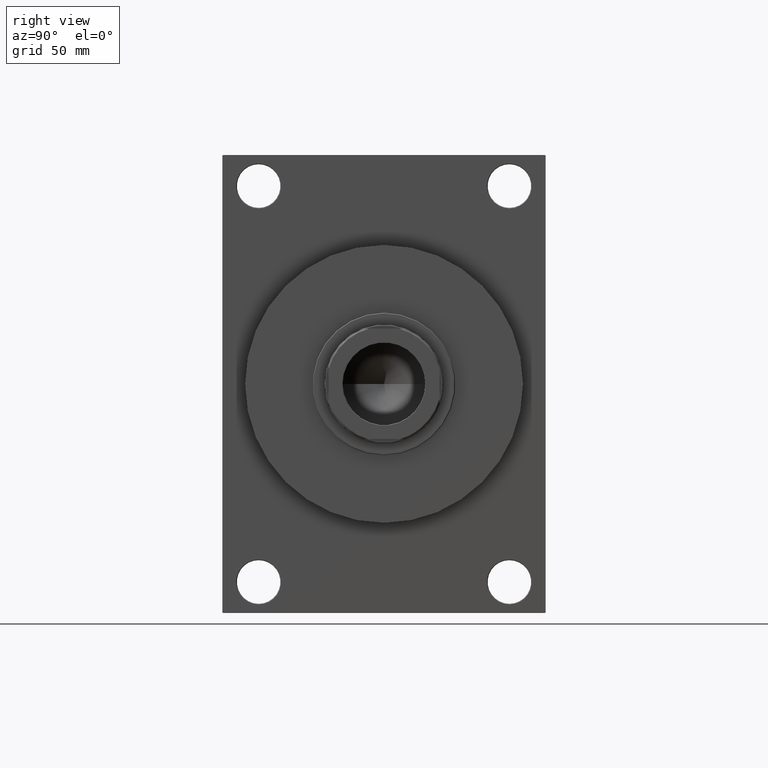
[diagram: clean part render]
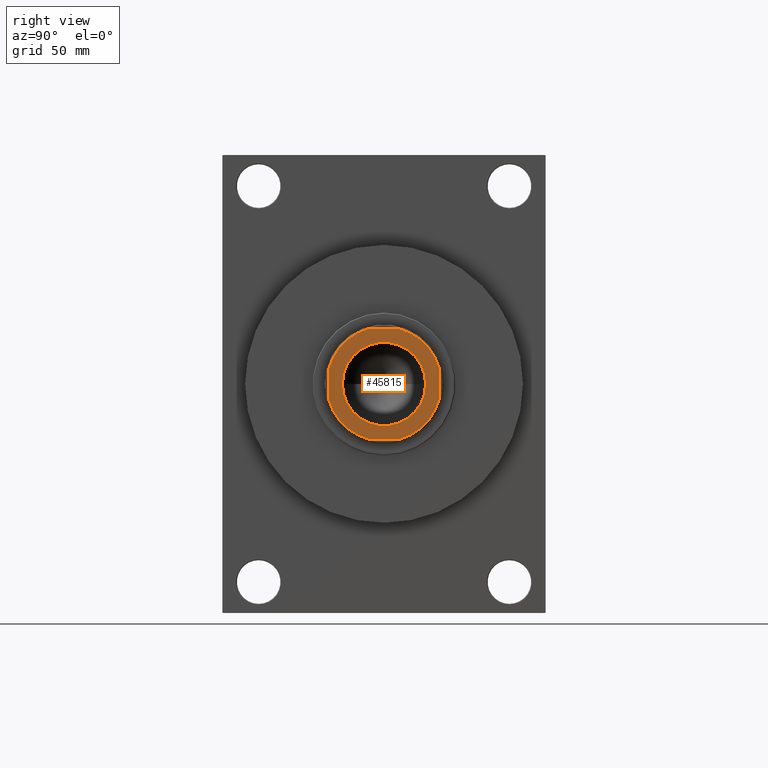
[diagram: same view with one face highlighted and labeled with its STEP entity id]
A machine part, right view. The second image highlights one B-rep face of the part: STEP entity #45815.
In plain terms, the highlighted planar face has unit normal (1, 0, 0).
Its self-contained STEP definition (entity closure, byte-faithful):
#1191 = CARTESIAN_POINT ( 'NONE',  ( 0.000000000000000000, 0.000000000000000000, 245.0000000000000000 ) ) ;
#1218 = VERTEX_POINT ( 'NONE', #26447 ) ;
#1507 = LINE ( 'NONE', #34026, #29238 ) ;
#1559 = CIRCLE ( 'NONE', #21541, 43.50000000000004263 ) ;
#2577 = CARTESIAN_POINT ( 'NONE',  ( -42.00000000000001421, 41.99999999999997868, 245.0000000000000000 ) ) ;
#2804 = ORIENTED_EDGE ( 'NONE', *, *, #30535, .T. ) ;
#3042 = DIRECTION ( 'NONE',  ( 1.652117596168388002E-16, -1.000000000000000000, 0.000000000000000000 ) ) ;
#4502 = CARTESIAN_POINT ( 'NONE',  ( 0.000000000000000000, 0.000000000000000000, 245.0000000000000000 ) ) ;
#6237 = VERTEX_POINT ( 'NONE', #41817 ) ;
#6758 = VECTOR ( 'NONE', #28336, 1000.000000000000000 ) ;
#7099 = CIRCLE ( 'NONE', #13996, 31.55000000000002203 ) ;
#7189 = DIRECTION ( 'NONE',  ( 0.000000000000000000, -0.000000000000000000, -1.000000000000000000 ) ) ;
#7208 = CARTESIAN_POINT ( 'NONE',  ( -42.00000000000000711, 11.32475165290618158, 245.0000000000000000 ) ) ;
#7581 = DIRECTION ( 'NONE',  ( 1.000000000000000000, 0.000000000000000000, 0.000000000000000000 ) ) ;
#8363 = ORIENTED_EDGE ( 'NONE', *, *, #44033, .T. ) ;
#8394 = EDGE_CURVE ( 'NONE', #39062, #46157, #1559, .T. ) ;
#10377 = VERTEX_POINT ( 'NONE', #44978 ) ;
#10952 = CIRCLE ( 'NONE', #20179, 43.50000000000002132 ) ;
#11522 = CIRCLE ( 'NONE', #18468, 43.50000000000011369 ) ;
#12058 = CARTESIAN_POINT ( 'NONE',  ( 41.99999999999998579, 11.32475165290661856, 245.0000000000000000 ) ) ;
#12250 = EDGE_CURVE ( 'NONE', #46157, #10377, #36476, .T. ) ;
#12594 = CARTESIAN_POINT ( 'NONE',  ( -11.32475165290629171, 41.99999999999997868, 245.0000000000000000 ) ) ;
#12913 = EDGE_CURVE ( 'NONE', #13369, #15621, #10952, .T. ) ;
#13240 = AXIS2_PLACEMENT_3D ( 'NONE', #34589, #30987, #21331 ) ;
#13369 = VERTEX_POINT ( 'NONE', #12594 ) ;
#13863 = CARTESIAN_POINT ( 'NONE',  ( 41.99999999999999289, -11.32475165290659724, 245.0000000000000000 ) ) ;
#13996 = AXIS2_PLACEMENT_3D ( 'NONE', #4502, #7189, #33179 ) ;
#14031 = CARTESIAN_POINT ( 'NONE',  ( -31.55000000000002203, 3.863760651309902128E-15, 245.0000000000000000 ) ) ;
#14083 = ORIENTED_EDGE ( 'NONE', *, *, #32626, .T. ) ;
#14547 = DIRECTION ( 'NONE',  ( 1.000000000000000000, 0.000000000000000000, 0.000000000000000000 ) ) ;
#14932 = EDGE_CURVE ( 'NONE', #43257, #1218, #25641, .T. ) ;
#15621 = VERTEX_POINT ( 'NONE', #7208 ) ;
#15863 = DIRECTION ( 'NONE',  ( 0.000000000000000000, -0.000000000000000000, -1.000000000000000000 ) ) ;
#16140 = EDGE_LOOP ( 'NONE', ( #14083, #27397, #18301, #42491, #2804, #30489, #41238, #8363 ) ) ;
#16330 = DIRECTION ( 'NONE',  ( 1.000000000000000000, 0.000000000000000000, 0.000000000000000000 ) ) ;
#16374 = DIRECTION ( 'NONE',  ( -0.000000000000000000, 0.000000000000000000, 1.000000000000000000 ) ) ;
#16756 = FACE_BOUND ( 'NONE', #38473, .T. ) ;
#16859 = DIRECTION ( 'NONE',  ( 1.000000000000000000, 0.000000000000000000, 0.000000000000000000 ) ) ;
#17378 = DIRECTION ( 'NONE',  ( -0.000000000000000000, 0.000000000000000000, 1.000000000000000000 ) ) ;
#18301 = ORIENTED_EDGE ( 'NONE', *, *, #40445, .T. ) ;
#18468 = AXIS2_PLACEMENT_3D ( 'NONE', #46014, #16374, #16859 ) ;
#19116 = DIRECTION ( 'NONE',  ( -0.000000000000000000, 0.000000000000000000, 1.000000000000000000 ) ) ;
#19404 = DIRECTION ( 'NONE',  ( -0.000000000000000000, 0.000000000000000000, 1.000000000000000000 ) ) ;
#19587 = CARTESIAN_POINT ( 'NONE',  ( 0.000000000000000000, 0.000000000000000000, 245.0000000000000000 ) ) ;
#20179 = AXIS2_PLACEMENT_3D ( 'NONE', #24515, #19404, #22074 ) ;
#21305 = CARTESIAN_POINT ( 'NONE',  ( -42.00000000000000711, -11.32475165290627039, 245.0000000000000000 ) ) ;
#21331 = DIRECTION ( 'NONE',  ( 1.000000000000000000, 0.000000000000000000, 0.000000000000000000 ) ) ;
#21341 = VERTEX_POINT ( 'NONE', #12058 ) ;
#21541 = AXIS2_PLACEMENT_3D ( 'NONE', #27997, #17378, #39768 ) ;
#21974 = CARTESIAN_POINT ( 'NONE',  ( -11.32475165290625085, -42.00000000000001421, 245.0000000000000000 ) ) ;
#22074 = DIRECTION ( 'NONE',  ( 1.000000000000000000, 0.000000000000000000, 0.000000000000000000 ) ) ;
#22931 = VECTOR ( 'NONE', #3042, 1000.000000000000000 ) ;
#23208 = AXIS2_PLACEMENT_3D ( 'NONE', #19587, #19116, #7581 ) ;
#24515 = CARTESIAN_POINT ( 'NONE',  ( 0.000000000000000000, 0.000000000000000000, 245.0000000000000000 ) ) ;
#25641 = CIRCLE ( 'NONE', #37902, 31.55000000000002203 ) ;
#26447 = CARTESIAN_POINT ( 'NONE',  ( 31.55000000000002203, 0.000000000000000000, 245.0000000000000000 ) ) ;
#26905 = FACE_OUTER_BOUND ( 'NONE', #16140, .T. ) ;
#27397 = ORIENTED_EDGE ( 'NONE', *, *, #36835, .T. ) ;
#27997 = CARTESIAN_POINT ( 'NONE',  ( 0.000000000000000000, 0.000000000000000000, 245.0000000000000000 ) ) ;
#28336 = DIRECTION ( 'NONE',  ( -2.478176394252582127E-16, 1.000000000000000000, -0.000000000000000000 ) ) ;
#29238 = VECTOR ( 'NONE', #39075, 1000.000000000000000 ) ;
#30489 = ORIENTED_EDGE ( 'NONE', *, *, #8394, .T. ) ;
#30535 = EDGE_CURVE ( 'NONE', #15621, #39062, #39878, .T. ) ;
#30987 = DIRECTION ( 'NONE',  ( -0.000000000000000000, 0.000000000000000000, 1.000000000000000000 ) ) ;
#32361 = ORIENTED_EDGE ( 'NONE', *, *, #14932, .T. ) ;
#32626 = EDGE_CURVE ( 'NONE', #44009, #21341, #40105, .T. ) ;
#33179 = DIRECTION ( 'NONE',  ( 1.000000000000000000, 0.000000000000000000, 0.000000000000000000 ) ) ;
#34026 = CARTESIAN_POINT ( 'NONE',  ( -42.00000000000001421, 41.99999999999997868, 245.0000000000000000 ) ) ;
#34589 = CARTESIAN_POINT ( 'NONE',  ( 0.000000000000000000, 0.000000000000000000, 245.0000000000000000 ) ) ;
#36476 = LINE ( 'NONE', #36939, #46307 ) ;
#36835 = EDGE_CURVE ( 'NONE', #21341, #6237, #11522, .T. ) ;
#36939 = CARTESIAN_POINT ( 'NONE',  ( -42.00000000000000000, -42.00000000000001421, 245.0000000000000000 ) ) ;
#37902 = AXIS2_PLACEMENT_3D ( 'NONE', #1191, #15863, #16330 ) ;
#37978 = PLANE ( 'NONE',  #13240 ) ;
#38473 = EDGE_LOOP ( 'NONE', ( #40915, #32361 ) ) ;
#39062 = VERTEX_POINT ( 'NONE', #21305 ) ;
#39075 = DIRECTION ( 'NONE',  ( -1.000000000000000000, -0.000000000000000000, -0.000000000000000000 ) ) ;
#39768 = DIRECTION ( 'NONE',  ( 1.000000000000000000, 0.000000000000000000, 0.000000000000000000 ) ) ;
#39878 = LINE ( 'NONE', #2577, #22931 ) ;
#40105 = LINE ( 'NONE', #46638, #6758 ) ;
#40445 = EDGE_CURVE ( 'NONE', #6237, #13369, #1507, .T. ) ;
#40915 = ORIENTED_EDGE ( 'NONE', *, *, #45556, .T. ) ;
#41238 = ORIENTED_EDGE ( 'NONE', *, *, #12250, .T. ) ;
#41817 = CARTESIAN_POINT ( 'NONE',  ( 11.32475165290663277, 41.99999999999997868, 245.0000000000000000 ) ) ;
#42491 = ORIENTED_EDGE ( 'NONE', *, *, #12913, .T. ) ;
#43199 = CIRCLE ( 'NONE', #23208, 43.50000000000011369 ) ;
#43257 = VERTEX_POINT ( 'NONE', #14031 ) ;
#44009 = VERTEX_POINT ( 'NONE', #13863 ) ;
#44033 = EDGE_CURVE ( 'NONE', #10377, #44009, #43199, .T. ) ;
#44978 = CARTESIAN_POINT ( 'NONE',  ( 11.32475165290652974, -42.00000000000000000, 245.0000000000000000 ) ) ;
#45556 = EDGE_CURVE ( 'NONE', #1218, #43257, #7099, .T. ) ;
#45815 = ADVANCED_FACE ( 'NONE', ( #16756, #26905 ), #37978, .T. ) ;
#46014 = CARTESIAN_POINT ( 'NONE',  ( 0.000000000000000000, 0.000000000000000000, 245.0000000000000000 ) ) ;
#46157 = VERTEX_POINT ( 'NONE', #21974 ) ;
#46307 = VECTOR ( 'NONE', #14547, 1000.000000000000000 ) ;
#46638 = CARTESIAN_POINT ( 'NONE',  ( 41.99999999999997868, 41.99999999999997868, 245.0000000000000000 ) ) ;